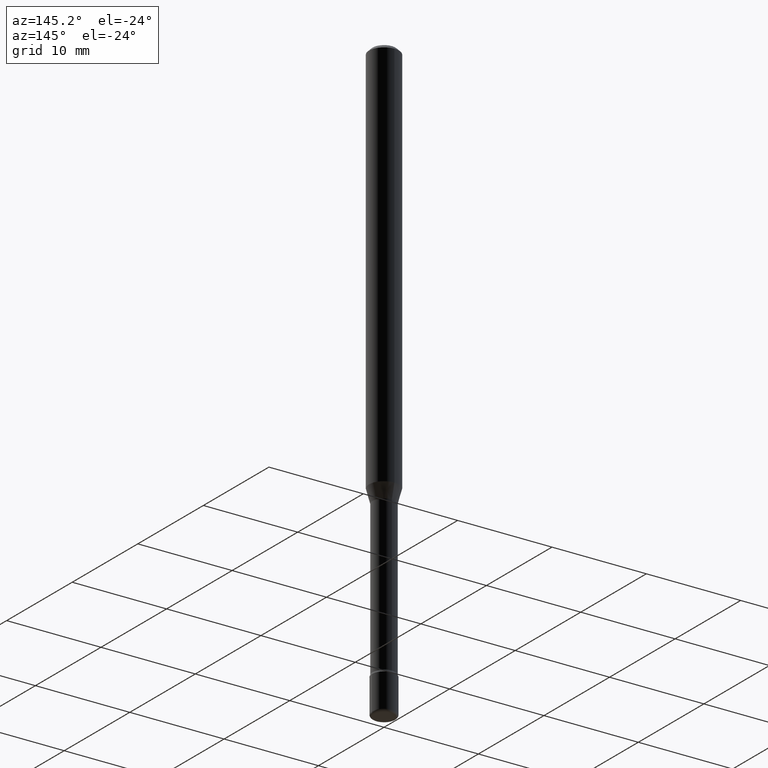
[diagram: clean part render]
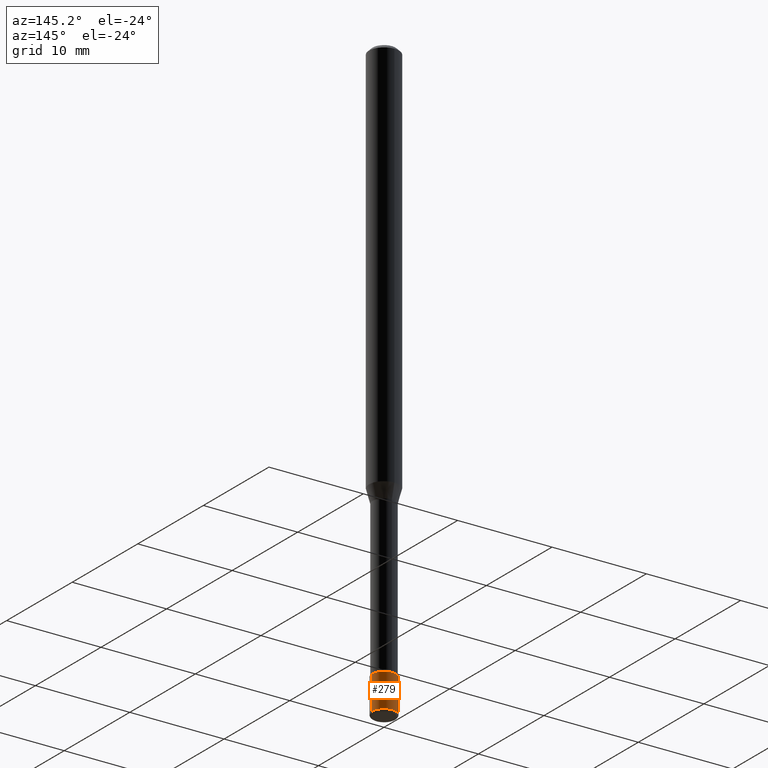
[diagram: same view with one face highlighted and labeled with its STEP entity id]
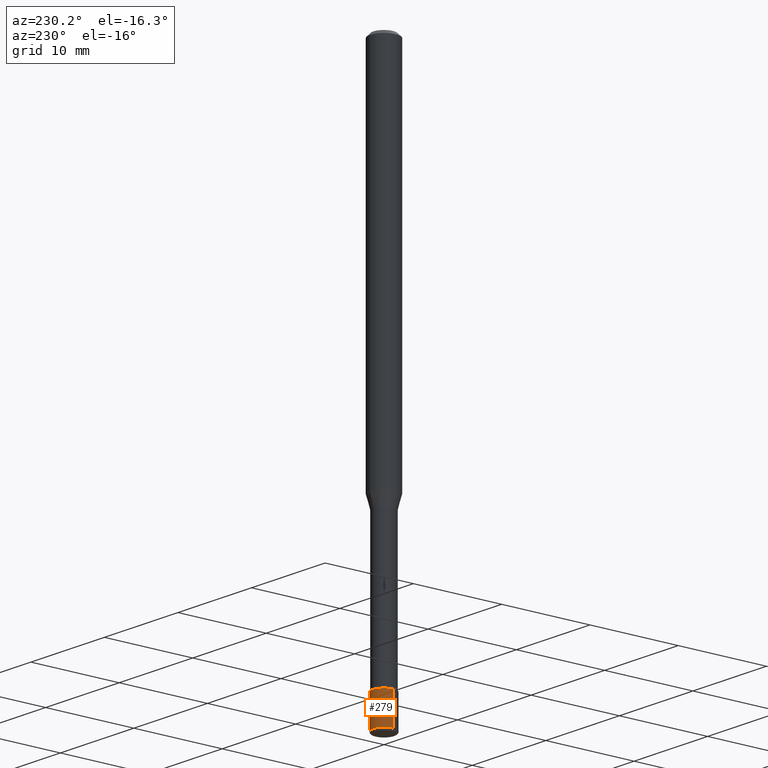
[diagram: same view with one face highlighted and labeled with its STEP entity id]
A machine part, auxiliary view. The second image highlights one B-rep face of the part: STEP entity #279.
A second angle (auxiliary view) of the same face is appended — the face is thin or edge-on in the first view.
In plain terms, the highlighted cylindrical surface (edge-blend (fillet) strip) has radius 1.27 mm, axis along (-0, 0, 1).
Its self-contained STEP definition (entity closure, byte-faithful):
#1 = VERTEX_POINT ( 'NONE', #278 ) ;
#23 = CARTESIAN_POINT ( 'NONE',  ( -0.05000000000000000971, 3.552713678800501620E-16, -2.459467545127453311E-30 ) ) ;
#24 = CARTESIAN_POINT ( 'NONE',  ( -0.05000000000000004441, -8.338517165839381307E-15, -2.489999999999999769 ) ) ;
#25 = DIRECTION ( 'NONE',  ( -2.445468806185136877E-29, 3.491481338843145188E-15, 1.000000000000000000 ) ) ;
#29 = DIRECTION ( 'NONE',  ( 1.000000000000000000, -6.982962677686274599E-15, 0.000000000000000000 ) ) ;
#41 = EDGE_CURVE ( 'NONE', #1, #514, #505, .T. ) ;
#58 = VERTEX_POINT ( 'NONE', #24 ) ;
#73 = AXIS2_PLACEMENT_3D ( 'NONE', #489, #449, #103 ) ;
#89 = VECTOR ( 'NONE', #25, 39.37007874015748143 ) ;
#103 = DIRECTION ( 'NONE',  ( 1.000000000000000000, -6.982962677686267499E-15, 4.876176775795936353E-29 ) ) ;
#114 = DIRECTION ( 'NONE',  ( 1.000000000000000000, -6.982962677686273021E-15, 0.000000000000000000 ) ) ;
#124 = ORIENTED_EDGE ( 'NONE', *, *, #41, .F. ) ;
#131 = ORIENTED_EDGE ( 'NONE', *, *, #336, .F. ) ;
#139 = ORIENTED_EDGE ( 'NONE', *, *, #458, .T. ) ;
#155 = DIRECTION ( 'NONE',  ( -2.445468806185136877E-29, 3.491481338843145188E-15, 1.000000000000000000 ) ) ;
#217 = CARTESIAN_POINT ( 'NONE',  ( 0.05000000000000000278, -8.554129280165706697E-15, -2.350000000000000089 ) ) ;
#235 = FACE_OUTER_BOUND ( 'NONE', #356, .T. ) ;
#240 = LINE ( 'NONE', #23, #89 ) ;
#278 = CARTESIAN_POINT ( 'NONE',  ( 0.05000000000000004441, -9.042936667603745051E-15, -2.489999999999999769 ) ) ;
#279 = ADVANCED_FACE ( 'NONE', ( #235 ), #405, .T. ) ;
#315 = ORIENTED_EDGE ( 'NONE', *, *, #380, .T. ) ;
#336 = EDGE_CURVE ( 'NONE', #514, #378, #476, .T. ) ;
#356 = EDGE_LOOP ( 'NONE', ( #315, #139, #131, #124 ) ) ;
#369 = CARTESIAN_POINT ( 'NONE',  ( 6.089217327400989947E-29, -8.693788533719431716E-15, -2.489999999999999769 ) ) ;
#378 = VERTEX_POINT ( 'NONE', #419 ) ;
#380 = EDGE_CURVE ( 'NONE', #1, #58, #487, .T. ) ;
#405 = CYLINDRICAL_SURFACE ( 'NONE', #73, 0.05000000000000000971 ) ;
#413 = VECTOR ( 'NONE', #155, 39.37007874015748143 ) ;
#419 = CARTESIAN_POINT ( 'NONE',  ( -0.05000000000000000278, -8.094113472120361341E-15, -2.350000000000000089 ) ) ;
#421 = DIRECTION ( 'NONE',  ( -2.445468806185136597E-29, 3.491481338843145583E-15, 1.000000000000000000 ) ) ;
#442 = CARTESIAN_POINT ( 'NONE',  ( 5.746851694535070554E-29, -8.204981146281391784E-15, -2.350000000000000089 ) ) ;
#449 = DIRECTION ( 'NONE',  ( -2.445468806185136597E-29, 3.491481338843145583E-15, 1.000000000000000000 ) ) ;
#458 = EDGE_CURVE ( 'NONE', #58, #378, #240, .T. ) ;
#476 = CIRCLE ( 'NONE', #561, 0.05000000000000000278 ) ;
#487 = CIRCLE ( 'NONE', #539, 0.05000000000000000971 ) ;
#489 = CARTESIAN_POINT ( 'NONE',  ( 0.000000000000000000, 0.000000000000000000, 0.000000000000000000 ) ) ;
#505 = LINE ( 'NONE', #554, #413 ) ;
#514 = VERTEX_POINT ( 'NONE', #217 ) ;
#539 = AXIS2_PLACEMENT_3D ( 'NONE', #369, #555, #114 ) ;
#554 = CARTESIAN_POINT ( 'NONE',  ( 0.05000000000000000971, -3.491481338843134341E-16, 2.438088387897968597E-30 ) ) ;
#555 = DIRECTION ( 'NONE',  ( -2.445468806185136597E-29, 3.491481338843145583E-15, 1.000000000000000000 ) ) ;
#561 = AXIS2_PLACEMENT_3D ( 'NONE', #442, #421, #29 ) ;